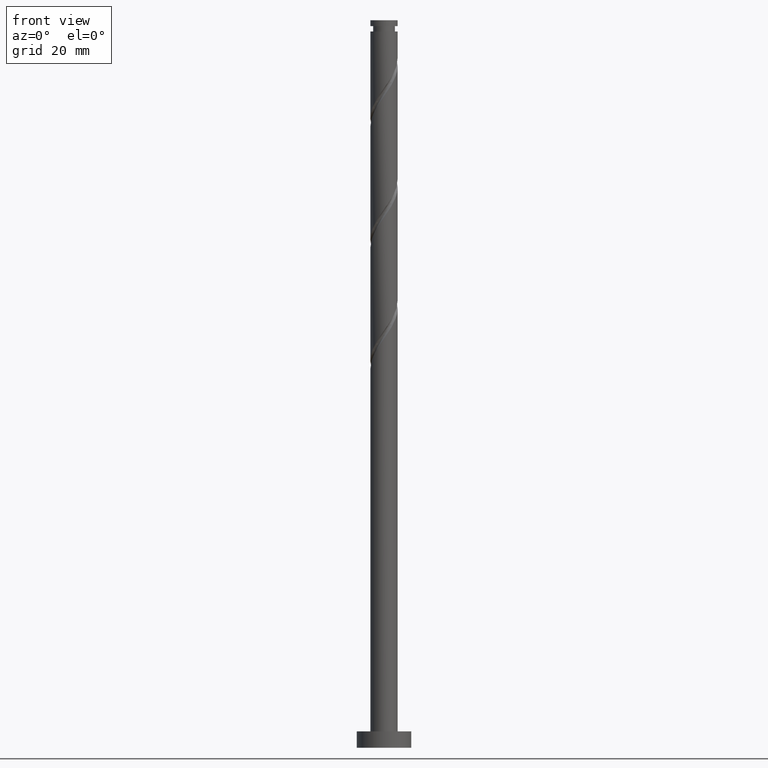
[diagram: clean part render]
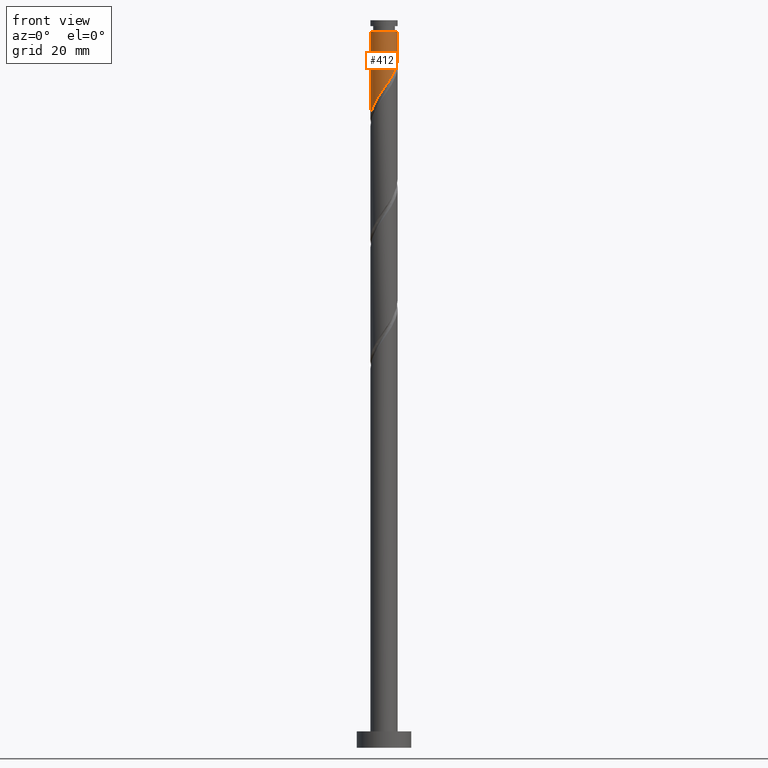
[diagram: same view with one face highlighted and labeled with its STEP entity id]
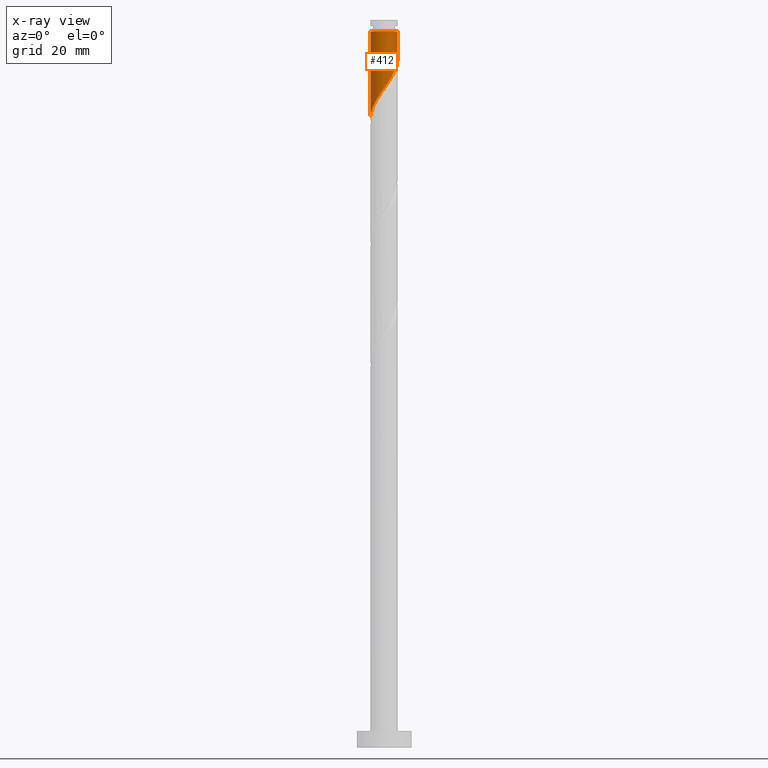
[diagram: x-ray of the same camera — body ghosted, the highlighted face saturated]
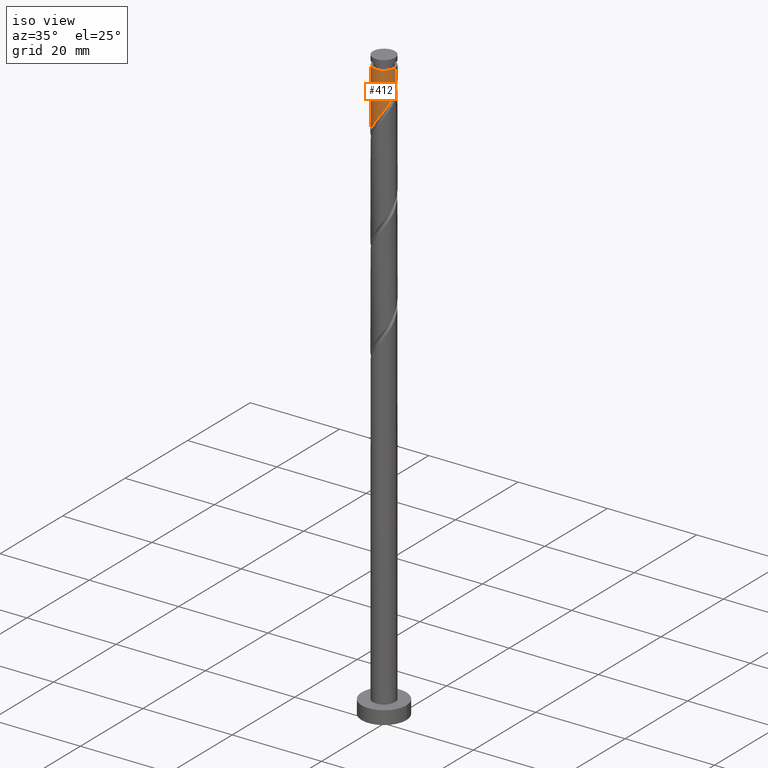
[diagram: same view with one face highlighted and labeled with its STEP entity id]
A machine part, front view. The second image highlights one B-rep face of the part: STEP entity #412.
The next image is the same camera in x-ray: the body ghosted, the highlighted face saturated — about 0% of this face is hidden behind the body in this view.
A second angle (iso view) of the same face is appended — the face is thin or edge-on in the first view.
In plain terms, the highlighted cylindrical surface (edge-blend (fillet) strip) has radius 2.5 mm, axis along (-0, -0, -1).
Its self-contained STEP definition (entity closure, byte-faithful):
#46 = FACE_OUTER_BOUND ( 'NONE', #75, .T. ) ;
#61 = CARTESIAN_POINT ( 'NONE',  ( 1.037592995212143210, -2.274511107092398454, 122.4800368246846034 ) ) ;
#66 = DIRECTION ( 'NONE',  ( -0.000000000000000000, -0.000000000000000000, -1.000000000000000000 ) ) ;
#70 = CARTESIAN_POINT ( 'NONE',  ( -1.230236279064654381, -2.176354451295365866, 119.1440368246845907 ) ) ;
#75 = EDGE_LOOP ( 'NONE', ( #194, #1541, #666, #876 ) ) ;
#114 = EDGE_CURVE ( 'NONE', #257, #199, #761, .T. ) ;
#143 = EDGE_CURVE ( 'NONE', #257, #1049, #1106, .T. ) ;
#153 = AXIS2_PLACEMENT_3D ( 'NONE', #512, #1008, #401 ) ;
#194 = ORIENTED_EDGE ( 'NONE', *, *, #114, .F. ) ;
#199 = VERTEX_POINT ( 'NONE', #1068 ) ;
#211 = CARTESIAN_POINT ( 'NONE',  ( 1.397840163920913703, -2.110172521261065359, 123.0360368246846292 ) ) ;
#257 = VERTEX_POINT ( 'NONE', #1197 ) ;
#299 = CARTESIAN_POINT ( 'NONE',  ( 0.2839469933725874418, -2.483822478550886448, 121.3680368246845944 ) ) ;
#313 = CARTESIAN_POINT ( 'NONE',  ( -2.483822478550886448, -0.2839469933725875528, 115.8080368246846064 ) ) ;
#369 = CARTESIAN_POINT ( 'NONE',  ( -2.500000000000000444, -1.094496503174020679E-15, 115.4057267270029286 ) ) ;
#385 = DIRECTION ( 'NONE',  ( -0.000000000000000000, -0.000000000000000000, -1.000000000000000000 ) ) ;
#401 = DIRECTION ( 'NONE',  ( -1.000000000000000000, 0.000000000000000000, 0.000000000000000000 ) ) ;
#405 = AXIS2_PLACEMENT_3D ( 'NONE', #622, #66, #531 ) ;
#412 = ADVANCED_FACE ( 'NONE', ( #46 ), #1124, .T. ) ;
#424 = CARTESIAN_POINT ( 'NONE',  ( -0.8855355973484250187, -2.371204735821961229, 119.7000368246846165 ) ) ;
#431 = CARTESIAN_POINT ( 'NONE',  ( -2.500000000000000000, -0.1424343436160822596, 115.6080336049534765 ) ) ;
#467 = VECTOR ( 'NONE', #1099, 1000.000000000000000 ) ;
#494 = CARTESIAN_POINT ( 'NONE',  ( -2.499999999999996003, 0.000000000000000000, 131.3760368246846042 ) ) ;
#512 = CARTESIAN_POINT ( 'NONE',  ( 0.000000000000000000, 0.000000000000000000, 133.4399999999999977 ) ) ;
#531 = DIRECTION ( 'NONE',  ( -1.000000000000000000, 0.000000000000000000, 0.000000000000000000 ) ) ;
#542 = CARTESIAN_POINT ( 'NONE',  ( -0.1094518397581973335, -2.528795264178039570, 120.8120368246846255 ) ) ;
#574 = CARTESIAN_POINT ( 'NONE',  ( 2.371204735821961229, -0.8855355973484252408, 125.2600368246846330 ) ) ;
#592 = CARTESIAN_POINT ( 'NONE',  ( -2.500000000000000000, 0.000000000000000000, 133.4399999999999977 ) ) ;
#622 = CARTESIAN_POINT ( 'NONE',  ( 0.000000000000000000, 0.000000000000000000, 131.3760368246846042 ) ) ;
#639 =( BOUNDED_CURVE ( )  B_SPLINE_CURVE ( 2, ( #1065, #1045, #1071, #574, #1515, #807, #1152, #211, #61, #1411, #299, #542, #1291, #424, #70, #1547, #1039, #1523, #685, #942, #313, #431, #1301 ),
 .UNSPECIFIED., .F., .T. ) 
 B_SPLINE_CURVE_WITH_KNOTS ( ( 3, 2, 2, 2, 2, 2, 2, 2, 2, 2, 2, 3 ),
 ( 0.3045322023138553602, 0.3125000000000000000, 0.3250000000000000111, 0.3375000000000000222, 0.3499999999999999778, 0.3624999999999999889, 0.3750000000000000000, 0.3875000000000000111, 0.4000000000000000222, 0.4124999999999999778, 0.4249999999999999889, 0.4295322023138551382 ),
 .UNSPECIFIED. ) 
 CURVE ( )  GEOMETRIC_REPRESENTATION_ITEM ( )  RATIONAL_B_SPLINE_CURVE ( ( 0.9039174447099372900, 0.9019565955404669211, 0.9090909090909150558, 0.8978984914501311199, 0.9090909090909150558, 0.8978984914501311199, 0.9090909090909150558, 0.8978984914501311199, 0.9090909090909150558, 0.8978984914501311199, 0.9090909090909150558, 0.8978984914501311199, 0.9090909090909150558, 0.8978984914501311199, 0.9090909090909150558, 0.8978984914501311199, 0.9090909090909150558, 0.8978984914501311199, 0.9090909090909150558, 0.8978984914501311199, 0.9090909090909150558, 0.9050328050005795877, 0.9039174447099374010 ) ) 
 REPRESENTATION_ITEM ( '' )  );
#666 = ORIENTED_EDGE ( 'NONE', *, *, #1304, .T. ) ;
#685 = CARTESIAN_POINT ( 'NONE',  ( -2.274511107092398454, -1.037592995212143210, 116.9200368246846011 ) ) ;
#761 = LINE ( 'NONE', #1156, #783 ) ;
#783 = VECTOR ( 'NONE', #385, 1000.000000000000000 ) ;
#807 = CARTESIAN_POINT ( 'NONE',  ( 1.981504166768770947, -1.574936960780884965, 124.1480368246846098 ) ) ;
#876 = ORIENTED_EDGE ( 'NONE', *, *, #1026, .F. ) ;
#942 = CARTESIAN_POINT ( 'NONE',  ( -2.438849692923735102, -0.6773458265033723835, 116.3640368246846180 ) ) ;
#1008 = DIRECTION ( 'NONE',  ( -0.000000000000000000, -0.000000000000000000, -1.000000000000000000 ) ) ;
#1026 = EDGE_CURVE ( 'NONE', #199, #1397, #639, .T. ) ;
#1039 = CARTESIAN_POINT ( 'NONE',  ( -1.842554741020974829, -1.689672165344842547, 118.0320368246846243 ) ) ;
#1045 = CARTESIAN_POINT ( 'NONE',  ( 2.499999999999998668, -0.2512594538148101853, 126.1688499066635529 ) ) ;
#1049 = VERTEX_POINT ( 'NONE', #494 ) ;
#1065 = CARTESIAN_POINT ( 'NONE',  ( 2.500000000000000888, 7.196689335938767473E-16, 126.5257267270029331 ) ) ;
#1068 = CARTESIAN_POINT ( 'NONE',  ( 2.500000000000000444, 7.196689335938767473E-16, 126.5257267270029331 ) ) ;
#1071 = CARTESIAN_POINT ( 'NONE',  ( 2.449999999999998845, -0.4974937185533112594, 125.8160368246846161 ) ) ;
#1099 = DIRECTION ( 'NONE',  ( -0.000000000000000000, -0.000000000000000000, -1.000000000000000000 ) ) ;
#1106 = CIRCLE ( 'NONE', #405, 2.499999999999996003 ) ;
#1124 = CYLINDRICAL_SURFACE ( 'NONE', #153, 2.500000000000000000 ) ;
#1152 = CARTESIAN_POINT ( 'NONE',  ( 1.689672165344842547, -1.842554741020974829, 123.5920368246845840 ) ) ;
#1156 = CARTESIAN_POINT ( 'NONE',  ( 2.500000000000000000, 3.061616997868383141E-16, 133.4399999999999977 ) ) ;
#1197 = CARTESIAN_POINT ( 'NONE',  ( 2.499999999999996003, 3.061616997868381169E-16, 131.3760368246846042 ) ) ;
#1211 = LINE ( 'NONE', #592, #467 ) ;
#1291 = CARTESIAN_POINT ( 'NONE',  ( -0.4974937185533110373, -2.449999999999998845, 120.2560368246845712 ) ) ;
#1301 = CARTESIAN_POINT ( 'NONE',  ( -2.500000000000000444, -1.094496503174020679E-15, 115.4057267270029286 ) ) ;
#1304 = EDGE_CURVE ( 'NONE', #1049, #1397, #1211, .T. ) ;
#1397 = VERTEX_POINT ( 'NONE', #369 ) ;
#1411 = CARTESIAN_POINT ( 'NONE',  ( 0.6773458265033720505, -2.438849692923734658, 121.9240368246846060 ) ) ;
#1515 = CARTESIAN_POINT ( 'NONE',  ( 2.176354451295365866, -1.230236279064655047, 124.7040368246846072 ) ) ;
#1523 = CARTESIAN_POINT ( 'NONE',  ( -2.110172521261064471, -1.397840163920913703, 117.4760368246845985 ) ) ;
#1541 = ORIENTED_EDGE ( 'NONE', *, *, #143, .T. ) ;
#1547 = CARTESIAN_POINT ( 'NONE',  ( -1.574936960780884743, -1.981504166768770947, 118.5880368246846217 ) ) ;